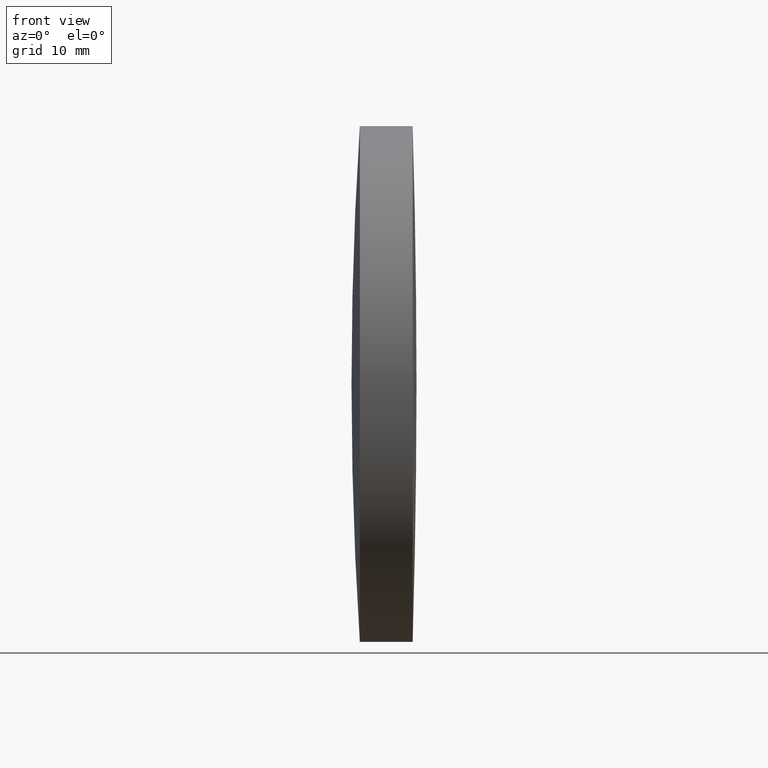
[diagram: clean part render]
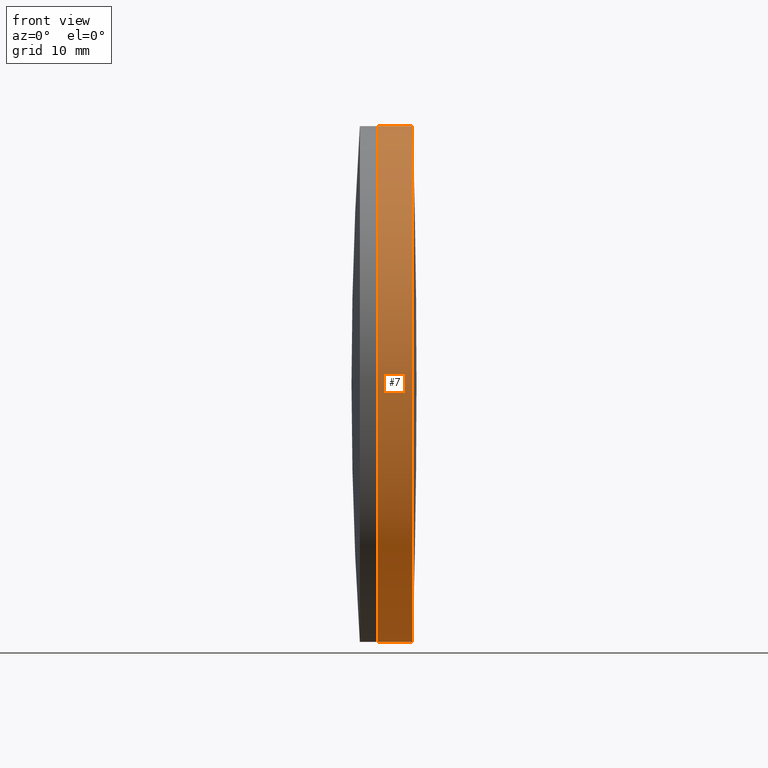
[diagram: same view with one face highlighted and labeled with its STEP entity id]
A machine part, front view. The second image highlights one B-rep face of the part: STEP entity #7.
In plain terms, the highlighted cylindrical surface (partial cylindrical patch) has radius 25 mm, axis along (-1, -0, -0).
Its self-contained STEP definition (entity closure, byte-faithful):
#2 = ORIENTED_EDGE ( 'NONE', *, *, #39, .F. ) ;
#7 = ADVANCED_FACE ( 'NONE', ( #203 ), #276, .T. ) ;
#13 = LINE ( 'NONE', #255, #82 ) ;
#37 = DIRECTION ( 'NONE',  ( -1.000000000000000000, -0.0000000000000000000, -0.0000000000000000000 ) ) ;
#39 = EDGE_CURVE ( 'NONE', #251, #142, #306, .T. ) ;
#53 = ORIENTED_EDGE ( 'NONE', *, *, #192, .F. ) ;
#69 = DIRECTION ( 'NONE',  ( -1.000000000000000000, -0.0000000000000000000, -0.0000000000000000000 ) ) ;
#81 = CARTESIAN_POINT ( 'NONE',  ( 297.0363495728295200, 0.0000000000000000000, 0.0000000000000000000 ) ) ;
#82 = VECTOR ( 'NONE', #150, 1000.000000000000000 ) ;
#88 = CARTESIAN_POINT ( 'NONE',  ( 293.6613078278429600, 3.061616997868377100E-015, -24.99999999999962700 ) ) ;
#92 = VERTEX_POINT ( 'NONE', #245 ) ;
#101 = CARTESIAN_POINT ( 'NONE',  ( -0.5519199926577972300, 0.0000000000000000000, 0.0000000000000000000 ) ) ;
#108 = VERTEX_POINT ( 'NONE', #305 ) ;
#117 = ORIENTED_EDGE ( 'NONE', *, *, #287, .T. ) ;
#120 = CARTESIAN_POINT ( 'NONE',  ( 293.6613078278429600, 0.0000000000000000000, 0.0000000000000000000 ) ) ;
#128 = DIRECTION ( 'NONE',  ( -1.000000000000000000, -0.0000000000000000000, -0.0000000000000000000 ) ) ;
#142 = VERTEX_POINT ( 'NONE', #257 ) ;
#150 = DIRECTION ( 'NONE',  ( -1.000000000000000000, -0.0000000000000000000, -0.0000000000000000000 ) ) ;
#155 = EDGE_CURVE ( 'NONE', #108, #142, #13, .T. ) ;
#156 = CARTESIAN_POINT ( 'NONE',  ( -0.5519199926577972300, 3.061616997868332200E-015, -24.99999999999958400 ) ) ;
#160 = EDGE_LOOP ( 'NONE', ( #53, #117, #345, #2 ) ) ;
#168 = DIRECTION ( 'NONE',  ( 0.0000000000000000000, 0.0000000000000000000, 1.000000000000000000 ) ) ;
#178 = CIRCLE ( 'NONE', #194, 24.99999999999932500 ) ;
#179 = AXIS2_PLACEMENT_3D ( 'NONE', #101, #37, #168 ) ;
#192 = EDGE_CURVE ( 'NONE', #92, #251, #208, .T. ) ;
#194 = AXIS2_PLACEMENT_3D ( 'NONE', #81, #299, #254 ) ;
#203 = FACE_OUTER_BOUND ( 'NONE', #160, .T. ) ;
#208 = LINE ( 'NONE', #156, #308 ) ;
#245 = CARTESIAN_POINT ( 'NONE',  ( 297.0363495728295200, 3.061616997868316400E-015, -24.99999999999932500 ) ) ;
#251 = VERTEX_POINT ( 'NONE', #88 ) ;
#254 = DIRECTION ( 'NONE',  ( 0.0000000000000000000, 0.0000000000000000000, 1.000000000000000000 ) ) ;
#255 = CARTESIAN_POINT ( 'NONE',  ( -0.5519199926577972300, 0.0000000000000000000, 24.99999999999958400 ) ) ;
#257 = CARTESIAN_POINT ( 'NONE',  ( 293.6613078278429600, 0.0000000000000000000, 24.99999999999995400 ) ) ;
#266 = DIRECTION ( 'NONE',  ( 0.0000000000000000000, 0.0000000000000000000, 1.000000000000000000 ) ) ;
#276 = CYLINDRICAL_SURFACE ( 'NONE', #179, 24.99999999999958400 ) ;
#287 = EDGE_CURVE ( 'NONE', #92, #108, #178, .T. ) ;
#299 = DIRECTION ( 'NONE',  ( -1.000000000000000000, -0.0000000000000000000, -0.0000000000000000000 ) ) ;
#305 = CARTESIAN_POINT ( 'NONE',  ( 297.0363495728295200, 0.0000000000000000000, 24.99999999999932500 ) ) ;
#306 = CIRCLE ( 'NONE', #321, 24.99999999999984400 ) ;
#308 = VECTOR ( 'NONE', #69, 1000.000000000000000 ) ;
#321 = AXIS2_PLACEMENT_3D ( 'NONE', #120, #128, #266 ) ;
#345 = ORIENTED_EDGE ( 'NONE', *, *, #155, .T. ) ;